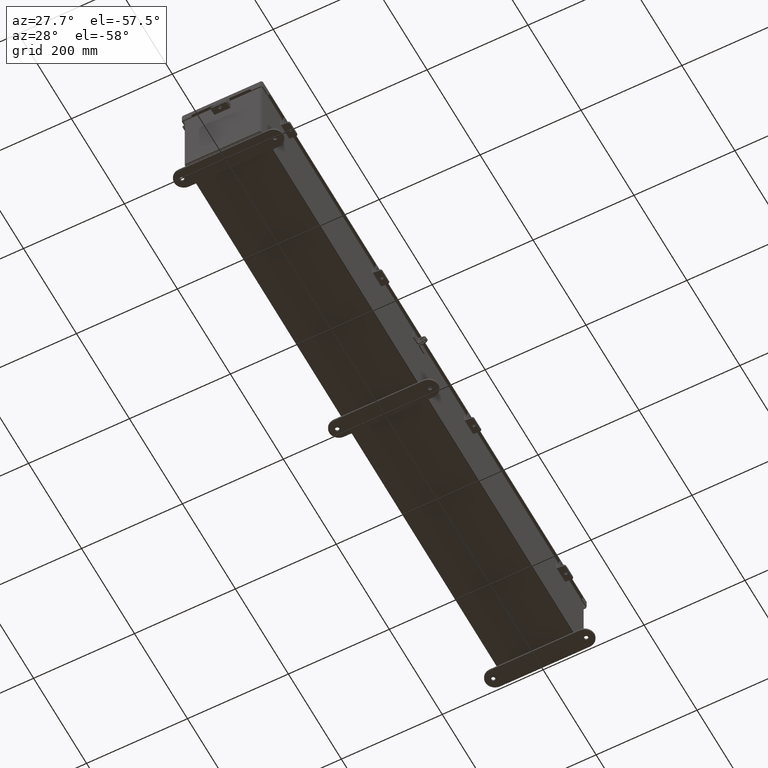
[diagram: clean part render]
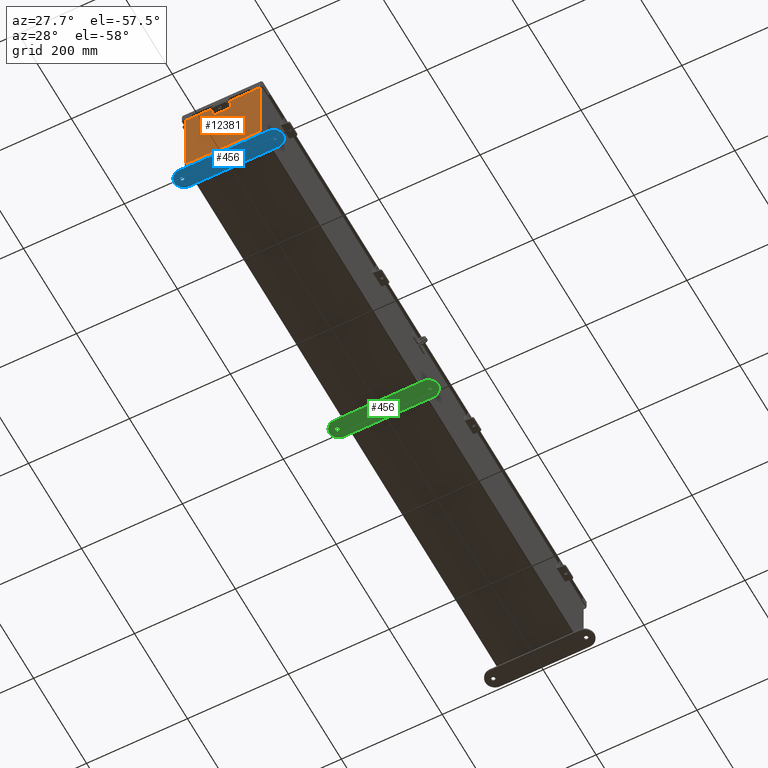
[diagram: same view with three faces highlighted in distinct colors, each labeled with its STEP entity id]
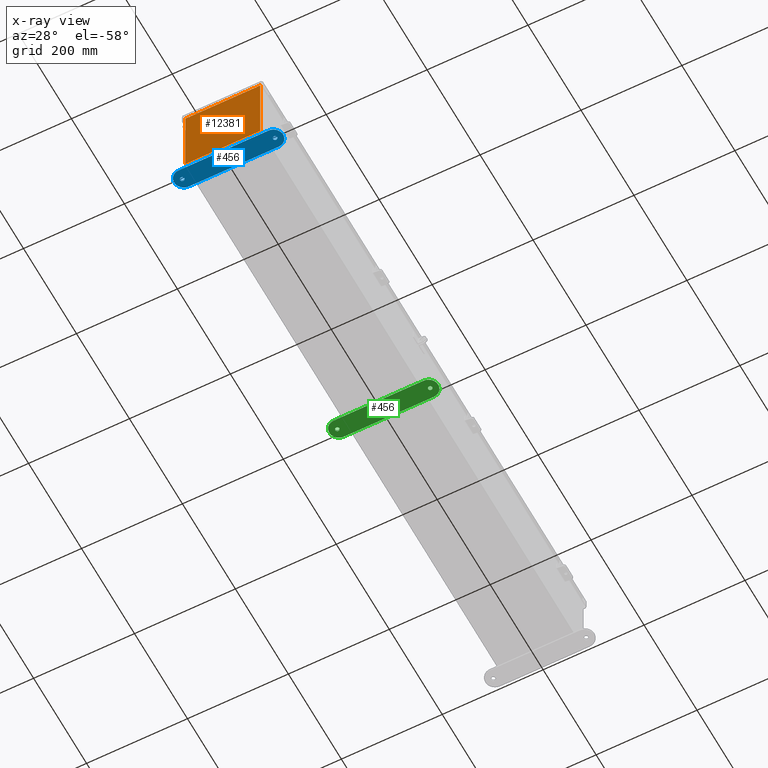
[diagram: x-ray of the same camera — body ghosted, the three highlighted faces saturated]
A machine part, auxiliary view with three faces highlighted in distinct colors.
The next image is the same camera in x-ray (body ghosted, the three faces saturated) — at least one of them is partly hidden behind the body in this view.
Their STEP definitions:

[orange] entity #12381 — the highlighted planar face has unit normal (-0, 1, -0).
#27 = LINE ( 'NONE', #12949, #13317 ) ;
#654 = VECTOR ( 'NONE', #19058, 39.37007874015748100 ) ;
#688 = CARTESIAN_POINT ( 'NONE',  ( -2.619649999999992500, 0.0000000000000000000, -1.092739197465705300E-014 ) ) ;
#832 = ORIENTED_EDGE ( 'NONE', *, *, #4064, .T. ) ;
#1425 = EDGE_LOOP ( 'NONE', ( #23794, #20501, #20190, #5834, #30243, #29289, #5566, #11015, #832, #7238, #14365, #12461 ) ) ;
#1518 = CARTESIAN_POINT ( 'NONE',  ( 0.0000000000000000000, 0.0000000000000000000, 0.0000000000000000000 ) ) ;
#2005 = VERTEX_POINT ( 'NONE', #12037 ) ;
#2037 = CARTESIAN_POINT ( 'NONE',  ( -2.925300000000003600, 0.0000000000000000000, -2.925300000000000500 ) ) ;
#3151 = CARTESIAN_POINT ( 'NONE',  ( -2.582299999999992500, 8.741913579725642300E-014, 2.912299999999998800 ) ) ;
#3189 = CARTESIAN_POINT ( 'NONE',  ( -2.619649999999992500, 8.741913579725642300E-014, 2.925299999999999100 ) ) ;
#3815 = CIRCLE ( 'NONE', #29779, 0.01867500000000003900 ) ;
#4064 = EDGE_CURVE ( 'NONE', #17382, #26729, #28432, .T. ) ;
#4407 = DIRECTION ( 'NONE',  ( 0.0000000000000000000, 0.0000000000000000000, -1.000000000000000000 ) ) ;
#4761 = DIRECTION ( 'NONE',  ( 0.0000000000000000000, 0.0000000000000000000, 1.000000000000000000 ) ) ;
#5513 = DIRECTION ( 'NONE',  ( 1.230560758958866800E-030, 1.000000000000000000, -0.0000000000000000000 ) ) ;
#5566 = ORIENTED_EDGE ( 'NONE', *, *, #7775, .F. ) ;
#5652 = EDGE_CURVE ( 'NONE', #29678, #17382, #30539, .T. ) ;
#5834 = ORIENTED_EDGE ( 'NONE', *, *, #32478, .T. ) ;
#6917 = CARTESIAN_POINT ( 'NONE',  ( -2.582299999999992500, 8.741913579725642300E-014, 2.874949999999999700 ) ) ;
#7238 = ORIENTED_EDGE ( 'NONE', *, *, #36311, .T. ) ;
#7775 = EDGE_CURVE ( 'NONE', #29678, #2005, #10544, .T. ) ;
#7954 = VERTEX_POINT ( 'NONE', #35002 ) ;
#8194 = LINE ( 'NONE', #2037, #654 ) ;
#9648 = EDGE_CURVE ( 'NONE', #2005, #36846, #3815, .T. ) ;
#9680 = CARTESIAN_POINT ( 'NONE',  ( -2.925300000000003600, 0.0000000000000000000, -2.925300000000000500 ) ) ;
#9924 = LINE ( 'NONE', #688, #16603 ) ;
#10181 = CARTESIAN_POINT ( 'NONE',  ( -2.582299999999992500, 0.0000000000000000000, 0.0000000000000000000 ) ) ;
#10544 = LINE ( 'NONE', #34250, #33299 ) ;
#10705 = DIRECTION ( 'NONE',  ( 1.230560758958866800E-030, 1.000000000000000000, -0.0000000000000000000 ) ) ;
#11015 = ORIENTED_EDGE ( 'NONE', *, *, #5652, .T. ) ;
#12037 = CARTESIAN_POINT ( 'NONE',  ( 2.619650000000007600, 8.741913579725642300E-014, 2.874949999999998800 ) ) ;
#12286 = CARTESIAN_POINT ( 'NONE',  ( -2.619649999999992500, 8.741913579725642300E-014, 2.874949999999998800 ) ) ;
#12381 = ADVANCED_FACE ( 'NONE', ( #12499 ), #32752, .F. ) ;
#12461 = ORIENTED_EDGE ( 'NONE', *, *, #26537, .T. ) ;
#12499 = FACE_OUTER_BOUND ( 'NONE', #1425, .T. ) ;
#12949 = CARTESIAN_POINT ( 'NONE',  ( 2.582300000000007600, 0.0000000000000000000, 0.0000000000000000000 ) ) ;
#13023 = DIRECTION ( 'NONE',  ( 0.0000000000000000000, 0.0000000000000000000, -1.000000000000000000 ) ) ;
#13317 = VECTOR ( 'NONE', #32898, 39.37007874015748100 ) ;
#14365 = ORIENTED_EDGE ( 'NONE', *, *, #34434, .T. ) ;
#14533 = DIRECTION ( 'NONE',  ( 1.000000000000000000, 1.230560758958866800E-030, -0.0000000000000000000 ) ) ;
#14832 = DIRECTION ( 'NONE',  ( 0.0000000000000000000, 0.0000000000000000000, 1.000000000000000000 ) ) ;
#15379 = VECTOR ( 'NONE', #4761, 39.37007874015748100 ) ;
#15383 = VECTOR ( 'NONE', #27498, 39.37007874015748100 ) ;
#15760 = CARTESIAN_POINT ( 'NONE',  ( 2.582300000000007600, 8.741913579725642300E-014, 2.874949999999998800 ) ) ;
#16155 = CARTESIAN_POINT ( 'NONE',  ( -2.925299999999992500, 0.0000000000000000000, 2.925300000000000000 ) ) ;
#16249 = AXIS2_PLACEMENT_3D ( 'NONE', #1518, #21414, #4407 ) ;
#16603 = VECTOR ( 'NONE', #14832, 39.37007874015748100 ) ;
#17025 = CARTESIAN_POINT ( 'NONE',  ( -2.582299999999992500, 8.741913579725642300E-014, 2.912299999999998800 ) ) ;
#17176 = DIRECTION ( 'NONE',  ( -1.085143195099989400E-014, 0.0000000000000000000, -1.000000000000000000 ) ) ;
#17382 = VERTEX_POINT ( 'NONE', #20640 ) ;
#17593 = LINE ( 'NONE', #3151, #24266 ) ;
#18108 = LINE ( 'NONE', #10181, #32346 ) ;
#18914 = CARTESIAN_POINT ( 'NONE',  ( -2.925299999999992500, 0.0000000000000000000, 2.925300000000000000 ) ) ;
#19058 = DIRECTION ( 'NONE',  ( -1.000000000000000000, -1.230560758958866800E-030, 0.0000000000000000000 ) ) ;
#20190 = ORIENTED_EDGE ( 'NONE', *, *, #34373, .F. ) ;
#20501 = ORIENTED_EDGE ( 'NONE', *, *, #35715, .F. ) ;
#20640 = CARTESIAN_POINT ( 'NONE',  ( 2.925300000000007600, 8.741913579725642300E-014, 2.925299999999999100 ) ) ;
#20875 = VECTOR ( 'NONE', #13023, 39.37007874015748100 ) ;
#20886 = CARTESIAN_POINT ( 'NONE',  ( 2.582300000000007600, 8.741913579725642300E-014, 2.912299999999997900 ) ) ;
#21414 = DIRECTION ( 'NONE',  ( -1.230560758958866800E-030, -1.000000000000000000, -0.0000000000000000000 ) ) ;
#21607 = CARTESIAN_POINT ( 'NONE',  ( -2.925299999999992500, 0.0000000000000000000, 2.925300000000000000 ) ) ;
#22537 = CARTESIAN_POINT ( 'NONE',  ( 2.600975000000007600, 8.741913579725642300E-014, 2.874949999999998800 ) ) ;
#23099 = CARTESIAN_POINT ( 'NONE',  ( 2.925299999999996900, 8.741913579725642300E-014, -2.925300000000000500 ) ) ;
#23794 = ORIENTED_EDGE ( 'NONE', *, *, #35991, .F. ) ;
#24252 = VERTEX_POINT ( 'NONE', #6917 ) ;
#24266 = VECTOR ( 'NONE', #14533, 39.37007874015748100 ) ;
#24445 = DIRECTION ( 'NONE',  ( 1.000000000000000000, 1.230560758958866800E-030, 0.0000000000000000000 ) ) ;
#25383 = DIRECTION ( 'NONE',  ( 0.0000000000000000000, 0.0000000000000000000, -1.000000000000000000 ) ) ;
#25548 = CIRCLE ( 'NONE', #32407, 0.01867500000000003900 ) ;
#26009 = LINE ( 'NONE', #21607, #33593 ) ;
#26170 = VERTEX_POINT ( 'NONE', #17025 ) ;
#26354 = VERTEX_POINT ( 'NONE', #12286 ) ;
#26537 = EDGE_CURVE ( 'NONE', #7954, #27271, #26009, .T. ) ;
#26729 = VERTEX_POINT ( 'NONE', #23099 ) ;
#27238 = DIRECTION ( 'NONE',  ( 0.0000000000000000000, 0.0000000000000000000, -1.000000000000000000 ) ) ;
#27271 = VERTEX_POINT ( 'NONE', #3189 ) ;
#27498 = DIRECTION ( 'NONE',  ( 1.000000000000000000, 1.230560758958866800E-030, 0.0000000000000000000 ) ) ;
#27770 = CARTESIAN_POINT ( 'NONE',  ( -2.600974999999992500, 8.741913579725642300E-014, 2.874949999999999700 ) ) ;
#28432 = LINE ( 'NONE', #30113, #20875 ) ;
#28708 = EDGE_CURVE ( 'NONE', #36846, #34858, #27, .T. ) ;
#29289 = ORIENTED_EDGE ( 'NONE', *, *, #9648, .F. ) ;
#29678 = VERTEX_POINT ( 'NONE', #34985 ) ;
#29731 = VERTEX_POINT ( 'NONE', #9680 ) ;
#29779 = AXIS2_PLACEMENT_3D ( 'NONE', #22537, #5513, #25383 ) ;
#30113 = CARTESIAN_POINT ( 'NONE',  ( 2.925300000000007600, 8.741913579725642300E-014, 2.925299999999999100 ) ) ;
#30243 = ORIENTED_EDGE ( 'NONE', *, *, #28708, .F. ) ;
#30537 = LINE ( 'NONE', #18914, #15379 ) ;
#30539 = LINE ( 'NONE', #16155, #15383 ) ;
#30635 = DIRECTION ( 'NONE',  ( 0.0000000000000000000, 0.0000000000000000000, -1.000000000000000000 ) ) ;
#32346 = VECTOR ( 'NONE', #27238, 39.37007874015748100 ) ;
#32407 = AXIS2_PLACEMENT_3D ( 'NONE', #27770, #10705, #30635 ) ;
#32478 = EDGE_CURVE ( 'NONE', #26170, #34858, #17593, .T. ) ;
#32752 = PLANE ( 'NONE',  #16249 ) ;
#32898 = DIRECTION ( 'NONE',  ( 0.0000000000000000000, 0.0000000000000000000, 1.000000000000000000 ) ) ;
#33299 = VECTOR ( 'NONE', #17176, 39.37007874015748100 ) ;
#33593 = VECTOR ( 'NONE', #24445, 39.37007874015748100 ) ;
#34250 = CARTESIAN_POINT ( 'NONE',  ( 2.619649999999976500, 0.0000000000000000000, -2.895758873284118700E-014 ) ) ;
#34373 = EDGE_CURVE ( 'NONE', #26170, #24252, #18108, .T. ) ;
#34434 = EDGE_CURVE ( 'NONE', #29731, #7954, #30537, .T. ) ;
#34858 = VERTEX_POINT ( 'NONE', #20886 ) ;
#34985 = CARTESIAN_POINT ( 'NONE',  ( 2.619650000000007600, 8.741913579725642300E-014, 2.925300000000000000 ) ) ;
#35002 = CARTESIAN_POINT ( 'NONE',  ( -2.925299999999992500, 0.0000000000000000000, 2.925300000000000000 ) ) ;
#35715 = EDGE_CURVE ( 'NONE', #24252, #26354, #25548, .T. ) ;
#35991 = EDGE_CURVE ( 'NONE', #26354, #27271, #9924, .T. ) ;
#36311 = EDGE_CURVE ( 'NONE', #26729, #29731, #8194, .T. ) ;
#36846 = VERTEX_POINT ( 'NONE', #15760 ) ;

[blue] entity #456 — the highlighted planar face has unit normal (0, 0, -1).
#29 = EDGE_CURVE ( 'NONE', #33764, #34724, #23783, .T. ) ;
#68 = CARTESIAN_POINT ( 'NONE',  ( -3.499999999999998700, -0.3379059350503894100, -0.1345000000000000100 ) ) ;
#264 = EDGE_LOOP ( 'NONE', ( #23900, #5285, #1655, #6222, #2686 ) ) ;
#456 = ADVANCED_FACE ( 'NONE', ( #26412, #2876, #25140 ), #35951, .T. ) ;
#1026 = DIRECTION ( 'NONE',  ( 0.0000000000000000000, 0.0000000000000000000, 1.000000000000000000 ) ) ;
#1655 = ORIENTED_EDGE ( 'NONE', *, *, #16808, .F. ) ;
#1827 = DIRECTION ( 'NONE',  ( -1.000000000000000000, 0.0000000000000000000, 0.0000000000000000000 ) ) ;
#1943 = CARTESIAN_POINT ( 'NONE',  ( -3.625000000000000400, 0.4120940649496067100, -0.1345000000000000100 ) ) ;
#2686 = ORIENTED_EDGE ( 'NONE', *, *, #20685, .F. ) ;
#2876 = FACE_BOUND ( 'NONE', #10411, .T. ) ;
#4814 = DIRECTION ( 'NONE',  ( -1.000000000000000000, 0.0000000000000000000, 0.0000000000000000000 ) ) ;
#5285 = ORIENTED_EDGE ( 'NONE', *, *, #24381, .F. ) ;
#5666 = CIRCLE ( 'NONE', #26856, 0.1564999999999992800 ) ;
#6098 = CARTESIAN_POINT ( 'NONE',  ( 4.250000000000000900, 0.4120940649496110900, -0.1345000000000000100 ) ) ;
#6222 = ORIENTED_EDGE ( 'NONE', *, *, #16857, .F. ) ;
#6479 = CIRCLE ( 'NONE', #20635, 0.1564999999999992800 ) ;
#7169 = VERTEX_POINT ( 'NONE', #16709 ) ;
#7198 = CIRCLE ( 'NONE', #16355, 0.7499999999999998900 ) ;
#8692 = CARTESIAN_POINT ( 'NONE',  ( 3.468500000000001000, 0.4120940649496067100, -0.1345000000000000100 ) ) ;
#9748 = VERTEX_POINT ( 'NONE', #8692 ) ;
#9855 = CARTESIAN_POINT ( 'NONE',  ( 3.499999999999998700, -0.3379059350503894100, -0.1345000000000000100 ) ) ;
#10411 = EDGE_LOOP ( 'NONE', ( #35938, #18778 ) ) ;
#12864 = CARTESIAN_POINT ( 'NONE',  ( 3.625000000000000400, 0.4120940649496067100, -0.1345000000000000100 ) ) ;
#12954 = VECTOR ( 'NONE', #35266, 39.37007874015748100 ) ;
#13640 = VERTEX_POINT ( 'NONE', #31101 ) ;
#14543 = CARTESIAN_POINT ( 'NONE',  ( 3.625000000000000400, 0.4120940649496067100, -0.1345000000000000100 ) ) ;
#15038 = EDGE_CURVE ( 'NONE', #9748, #28204, #6479, .T. ) ;
#15731 = DIRECTION ( 'NONE',  ( -1.000000000000000000, 0.0000000000000000000, 0.0000000000000000000 ) ) ;
#15768 = CARTESIAN_POINT ( 'NONE',  ( -3.625000000000000400, 0.4120940649496067100, -0.1345000000000000100 ) ) ;
#15779 = CARTESIAN_POINT ( 'NONE',  ( 3.500000000000000000, 0.4120940649496110900, -0.1345000000000000100 ) ) ;
#16181 = AXIS2_PLACEMENT_3D ( 'NONE', #16505, #36479, #19371 ) ;
#16355 = AXIS2_PLACEMENT_3D ( 'NONE', #18087, #1026, #20930 ) ;
#16505 = CARTESIAN_POINT ( 'NONE',  ( 3.500000000000000000, 0.4120940649496110900, -0.1345000000000000100 ) ) ;
#16552 = VERTEX_POINT ( 'NONE', #34173 ) ;
#16709 = CARTESIAN_POINT ( 'NONE',  ( -3.499999999999998700, 1.162094064949611600, -0.1345000000000000100 ) ) ;
#16808 = EDGE_CURVE ( 'NONE', #7169, #28468, #7198, .T. ) ;
#16857 = EDGE_CURVE ( 'NONE', #13640, #7169, #22350, .T. ) ;
#17428 = DIRECTION ( 'NONE',  ( -1.000000000000000000, 0.0000000000000000000, 0.0000000000000000000 ) ) ;
#17473 = CIRCLE ( 'NONE', #23939, 0.1564999999999992800 ) ;
#18087 = CARTESIAN_POINT ( 'NONE',  ( -3.499999999999998700, 0.4120940649496110900, -0.1345000000000000100 ) ) ;
#18655 = DIRECTION ( 'NONE',  ( -1.000000000000000000, 0.0000000000000000000, 0.0000000000000000000 ) ) ;
#18662 = DIRECTION ( 'NONE',  ( -1.000000000000000000, 0.0000000000000000000, 0.0000000000000000000 ) ) ;
#18778 = ORIENTED_EDGE ( 'NONE', *, *, #27501, .T. ) ;
#18857 = DIRECTION ( 'NONE',  ( 0.0000000000000000000, 0.0000000000000000000, -1.000000000000000000 ) ) ;
#19371 = DIRECTION ( 'NONE',  ( -1.000000000000000000, 0.0000000000000000000, 0.0000000000000000000 ) ) ;
#20635 = AXIS2_PLACEMENT_3D ( 'NONE', #14543, #34510, #17428 ) ;
#20685 = EDGE_CURVE ( 'NONE', #34724, #13640, #33046, .T. ) ;
#20930 = DIRECTION ( 'NONE',  ( 1.000000000000000000, 0.0000000000000000000, 0.0000000000000000000 ) ) ;
#21548 = ORIENTED_EDGE ( 'NONE', *, *, #15038, .F. ) ;
#21833 = DIRECTION ( 'NONE',  ( -0.0000000000000000000, -0.0000000000000000000, 1.000000000000000000 ) ) ;
#22350 = LINE ( 'NONE', #29382, #12954 ) ;
#22639 = EDGE_CURVE ( 'NONE', #16552, #34177, #23165, .T. ) ;
#22845 = AXIS2_PLACEMENT_3D ( 'NONE', #1943, #21833, #4814 ) ;
#23165 = CIRCLE ( 'NONE', #22845, 0.1564999999999992800 ) ;
#23783 = CIRCLE ( 'NONE', #16181, 0.7500000000000010000 ) ;
#23900 = ORIENTED_EDGE ( 'NONE', *, *, #29, .F. ) ;
#23939 = AXIS2_PLACEMENT_3D ( 'NONE', #15768, #35741, #18655 ) ;
#24381 = EDGE_CURVE ( 'NONE', #28468, #33764, #32392, .T. ) ;
#24447 = CARTESIAN_POINT ( 'NONE',  ( 3.781499999999999400, 0.4120940649496067100, -0.1345000000000000100 ) ) ;
#24794 = VECTOR ( 'NONE', #30283, 39.37007874015748100 ) ;
#25140 = FACE_BOUND ( 'NONE', #25849, .T. ) ;
#25171 = ORIENTED_EDGE ( 'NONE', *, *, #31002, .F. ) ;
#25768 = CARTESIAN_POINT ( 'NONE',  ( -3.781499999999999400, 0.4120940649496067100, -0.1345000000000000100 ) ) ;
#25849 = EDGE_LOOP ( 'NONE', ( #25171, #21548 ) ) ;
#26412 = FACE_OUTER_BOUND ( 'NONE', #264, .T. ) ;
#26856 = AXIS2_PLACEMENT_3D ( 'NONE', #12864, #32817, #15731 ) ;
#27441 = CARTESIAN_POINT ( 'NONE',  ( -3.499999999999998700, -0.3379059350503894100, -0.1345000000000000100 ) ) ;
#27501 = EDGE_CURVE ( 'NONE', #34177, #16552, #17473, .T. ) ;
#28204 = VERTEX_POINT ( 'NONE', #24447 ) ;
#28468 = VERTEX_POINT ( 'NONE', #68 ) ;
#29382 = CARTESIAN_POINT ( 'NONE',  ( -3.499999999999998700, 1.162094064949611600, -0.1345000000000000100 ) ) ;
#30172 = CARTESIAN_POINT ( 'NONE',  ( 3.500000000000000000, 0.4120940649496110900, -0.1345000000000000100 ) ) ;
#30283 = DIRECTION ( 'NONE',  ( 1.000000000000000000, -1.170791997284684700E-016, 0.0000000000000000000 ) ) ;
#31002 = EDGE_CURVE ( 'NONE', #28204, #9748, #5666, .T. ) ;
#31101 = CARTESIAN_POINT ( 'NONE',  ( 3.499999999999998700, 1.162094064949611600, -0.1345000000000000100 ) ) ;
#32392 = LINE ( 'NONE', #27441, #24794 ) ;
#32817 = DIRECTION ( 'NONE',  ( 0.0000000000000000000, 0.0000000000000000000, -1.000000000000000000 ) ) ;
#33046 = CIRCLE ( 'NONE', #36179, 0.7500000000000010000 ) ;
#33764 = VERTEX_POINT ( 'NONE', #9855 ) ;
#34173 = CARTESIAN_POINT ( 'NONE',  ( -3.468500000000001000, 0.4120940649496067100, -0.1345000000000000100 ) ) ;
#34177 = VERTEX_POINT ( 'NONE', #25768 ) ;
#34510 = DIRECTION ( 'NONE',  ( 0.0000000000000000000, 0.0000000000000000000, -1.000000000000000000 ) ) ;
#34627 = AXIS2_PLACEMENT_3D ( 'NONE', #30172, #18857, #1827 ) ;
#34724 = VERTEX_POINT ( 'NONE', #6098 ) ;
#35266 = DIRECTION ( 'NONE',  ( -1.000000000000000000, -1.170791997284684700E-016, 0.0000000000000000000 ) ) ;
#35741 = DIRECTION ( 'NONE',  ( -0.0000000000000000000, -0.0000000000000000000, 1.000000000000000000 ) ) ;
#35753 = DIRECTION ( 'NONE',  ( 0.0000000000000000000, 0.0000000000000000000, 1.000000000000000000 ) ) ;
#35938 = ORIENTED_EDGE ( 'NONE', *, *, #22639, .T. ) ;
#35951 = PLANE ( 'NONE',  #34627 ) ;
#36179 = AXIS2_PLACEMENT_3D ( 'NONE', #15779, #35753, #18662 ) ;
#36479 = DIRECTION ( 'NONE',  ( 0.0000000000000000000, 0.0000000000000000000, 1.000000000000000000 ) ) ;

[green] entity #456 — the highlighted planar face has unit normal (0, 0, -1).
#29 = EDGE_CURVE ( 'NONE', #33764, #34724, #23783, .T. ) ;
#68 = CARTESIAN_POINT ( 'NONE',  ( -3.499999999999998700, -0.3379059350503894100, -0.1345000000000000100 ) ) ;
#264 = EDGE_LOOP ( 'NONE', ( #23900, #5285, #1655, #6222, #2686 ) ) ;
#456 = ADVANCED_FACE ( 'NONE', ( #26412, #2876, #25140 ), #35951, .T. ) ;
#1026 = DIRECTION ( 'NONE',  ( 0.0000000000000000000, 0.0000000000000000000, 1.000000000000000000 ) ) ;
#1655 = ORIENTED_EDGE ( 'NONE', *, *, #16808, .F. ) ;
#1827 = DIRECTION ( 'NONE',  ( -1.000000000000000000, 0.0000000000000000000, 0.0000000000000000000 ) ) ;
#1943 = CARTESIAN_POINT ( 'NONE',  ( -3.625000000000000400, 0.4120940649496067100, -0.1345000000000000100 ) ) ;
#2686 = ORIENTED_EDGE ( 'NONE', *, *, #20685, .F. ) ;
#2876 = FACE_BOUND ( 'NONE', #10411, .T. ) ;
#4814 = DIRECTION ( 'NONE',  ( -1.000000000000000000, 0.0000000000000000000, 0.0000000000000000000 ) ) ;
#5285 = ORIENTED_EDGE ( 'NONE', *, *, #24381, .F. ) ;
#5666 = CIRCLE ( 'NONE', #26856, 0.1564999999999992800 ) ;
#6098 = CARTESIAN_POINT ( 'NONE',  ( 4.250000000000000900, 0.4120940649496110900, -0.1345000000000000100 ) ) ;
#6222 = ORIENTED_EDGE ( 'NONE', *, *, #16857, .F. ) ;
#6479 = CIRCLE ( 'NONE', #20635, 0.1564999999999992800 ) ;
#7169 = VERTEX_POINT ( 'NONE', #16709 ) ;
#7198 = CIRCLE ( 'NONE', #16355, 0.7499999999999998900 ) ;
#8692 = CARTESIAN_POINT ( 'NONE',  ( 3.468500000000001000, 0.4120940649496067100, -0.1345000000000000100 ) ) ;
#9748 = VERTEX_POINT ( 'NONE', #8692 ) ;
#9855 = CARTESIAN_POINT ( 'NONE',  ( 3.499999999999998700, -0.3379059350503894100, -0.1345000000000000100 ) ) ;
#10411 = EDGE_LOOP ( 'NONE', ( #35938, #18778 ) ) ;
#12864 = CARTESIAN_POINT ( 'NONE',  ( 3.625000000000000400, 0.4120940649496067100, -0.1345000000000000100 ) ) ;
#12954 = VECTOR ( 'NONE', #35266, 39.37007874015748100 ) ;
#13640 = VERTEX_POINT ( 'NONE', #31101 ) ;
#14543 = CARTESIAN_POINT ( 'NONE',  ( 3.625000000000000400, 0.4120940649496067100, -0.1345000000000000100 ) ) ;
#15038 = EDGE_CURVE ( 'NONE', #9748, #28204, #6479, .T. ) ;
#15731 = DIRECTION ( 'NONE',  ( -1.000000000000000000, 0.0000000000000000000, 0.0000000000000000000 ) ) ;
#15768 = CARTESIAN_POINT ( 'NONE',  ( -3.625000000000000400, 0.4120940649496067100, -0.1345000000000000100 ) ) ;
#15779 = CARTESIAN_POINT ( 'NONE',  ( 3.500000000000000000, 0.4120940649496110900, -0.1345000000000000100 ) ) ;
#16181 = AXIS2_PLACEMENT_3D ( 'NONE', #16505, #36479, #19371 ) ;
#16355 = AXIS2_PLACEMENT_3D ( 'NONE', #18087, #1026, #20930 ) ;
#16505 = CARTESIAN_POINT ( 'NONE',  ( 3.500000000000000000, 0.4120940649496110900, -0.1345000000000000100 ) ) ;
#16552 = VERTEX_POINT ( 'NONE', #34173 ) ;
#16709 = CARTESIAN_POINT ( 'NONE',  ( -3.499999999999998700, 1.162094064949611600, -0.1345000000000000100 ) ) ;
#16808 = EDGE_CURVE ( 'NONE', #7169, #28468, #7198, .T. ) ;
#16857 = EDGE_CURVE ( 'NONE', #13640, #7169, #22350, .T. ) ;
#17428 = DIRECTION ( 'NONE',  ( -1.000000000000000000, 0.0000000000000000000, 0.0000000000000000000 ) ) ;
#17473 = CIRCLE ( 'NONE', #23939, 0.1564999999999992800 ) ;
#18087 = CARTESIAN_POINT ( 'NONE',  ( -3.499999999999998700, 0.4120940649496110900, -0.1345000000000000100 ) ) ;
#18655 = DIRECTION ( 'NONE',  ( -1.000000000000000000, 0.0000000000000000000, 0.0000000000000000000 ) ) ;
#18662 = DIRECTION ( 'NONE',  ( -1.000000000000000000, 0.0000000000000000000, 0.0000000000000000000 ) ) ;
#18778 = ORIENTED_EDGE ( 'NONE', *, *, #27501, .T. ) ;
#18857 = DIRECTION ( 'NONE',  ( 0.0000000000000000000, 0.0000000000000000000, -1.000000000000000000 ) ) ;
#19371 = DIRECTION ( 'NONE',  ( -1.000000000000000000, 0.0000000000000000000, 0.0000000000000000000 ) ) ;
#20635 = AXIS2_PLACEMENT_3D ( 'NONE', #14543, #34510, #17428 ) ;
#20685 = EDGE_CURVE ( 'NONE', #34724, #13640, #33046, .T. ) ;
#20930 = DIRECTION ( 'NONE',  ( 1.000000000000000000, 0.0000000000000000000, 0.0000000000000000000 ) ) ;
#21548 = ORIENTED_EDGE ( 'NONE', *, *, #15038, .F. ) ;
#21833 = DIRECTION ( 'NONE',  ( -0.0000000000000000000, -0.0000000000000000000, 1.000000000000000000 ) ) ;
#22350 = LINE ( 'NONE', #29382, #12954 ) ;
#22639 = EDGE_CURVE ( 'NONE', #16552, #34177, #23165, .T. ) ;
#22845 = AXIS2_PLACEMENT_3D ( 'NONE', #1943, #21833, #4814 ) ;
#23165 = CIRCLE ( 'NONE', #22845, 0.1564999999999992800 ) ;
#23783 = CIRCLE ( 'NONE', #16181, 0.7500000000000010000 ) ;
#23900 = ORIENTED_EDGE ( 'NONE', *, *, #29, .F. ) ;
#23939 = AXIS2_PLACEMENT_3D ( 'NONE', #15768, #35741, #18655 ) ;
#24381 = EDGE_CURVE ( 'NONE', #28468, #33764, #32392, .T. ) ;
#24447 = CARTESIAN_POINT ( 'NONE',  ( 3.781499999999999400, 0.4120940649496067100, -0.1345000000000000100 ) ) ;
#24794 = VECTOR ( 'NONE', #30283, 39.37007874015748100 ) ;
#25140 = FACE_BOUND ( 'NONE', #25849, .T. ) ;
#25171 = ORIENTED_EDGE ( 'NONE', *, *, #31002, .F. ) ;
#25768 = CARTESIAN_POINT ( 'NONE',  ( -3.781499999999999400, 0.4120940649496067100, -0.1345000000000000100 ) ) ;
#25849 = EDGE_LOOP ( 'NONE', ( #25171, #21548 ) ) ;
#26412 = FACE_OUTER_BOUND ( 'NONE', #264, .T. ) ;
#26856 = AXIS2_PLACEMENT_3D ( 'NONE', #12864, #32817, #15731 ) ;
#27441 = CARTESIAN_POINT ( 'NONE',  ( -3.499999999999998700, -0.3379059350503894100, -0.1345000000000000100 ) ) ;
#27501 = EDGE_CURVE ( 'NONE', #34177, #16552, #17473, .T. ) ;
#28204 = VERTEX_POINT ( 'NONE', #24447 ) ;
#28468 = VERTEX_POINT ( 'NONE', #68 ) ;
#29382 = CARTESIAN_POINT ( 'NONE',  ( -3.499999999999998700, 1.162094064949611600, -0.1345000000000000100 ) ) ;
#30172 = CARTESIAN_POINT ( 'NONE',  ( 3.500000000000000000, 0.4120940649496110900, -0.1345000000000000100 ) ) ;
#30283 = DIRECTION ( 'NONE',  ( 1.000000000000000000, -1.170791997284684700E-016, 0.0000000000000000000 ) ) ;
#31002 = EDGE_CURVE ( 'NONE', #28204, #9748, #5666, .T. ) ;
#31101 = CARTESIAN_POINT ( 'NONE',  ( 3.499999999999998700, 1.162094064949611600, -0.1345000000000000100 ) ) ;
#32392 = LINE ( 'NONE', #27441, #24794 ) ;
#32817 = DIRECTION ( 'NONE',  ( 0.0000000000000000000, 0.0000000000000000000, -1.000000000000000000 ) ) ;
#33046 = CIRCLE ( 'NONE', #36179, 0.7500000000000010000 ) ;
#33764 = VERTEX_POINT ( 'NONE', #9855 ) ;
#34173 = CARTESIAN_POINT ( 'NONE',  ( -3.468500000000001000, 0.4120940649496067100, -0.1345000000000000100 ) ) ;
#34177 = VERTEX_POINT ( 'NONE', #25768 ) ;
#34510 = DIRECTION ( 'NONE',  ( 0.0000000000000000000, 0.0000000000000000000, -1.000000000000000000 ) ) ;
#34627 = AXIS2_PLACEMENT_3D ( 'NONE', #30172, #18857, #1827 ) ;
#34724 = VERTEX_POINT ( 'NONE', #6098 ) ;
#35266 = DIRECTION ( 'NONE',  ( -1.000000000000000000, -1.170791997284684700E-016, 0.0000000000000000000 ) ) ;
#35741 = DIRECTION ( 'NONE',  ( -0.0000000000000000000, -0.0000000000000000000, 1.000000000000000000 ) ) ;
#35753 = DIRECTION ( 'NONE',  ( 0.0000000000000000000, 0.0000000000000000000, 1.000000000000000000 ) ) ;
#35938 = ORIENTED_EDGE ( 'NONE', *, *, #22639, .T. ) ;
#35951 = PLANE ( 'NONE',  #34627 ) ;
#36179 = AXIS2_PLACEMENT_3D ( 'NONE', #15779, #35753, #18662 ) ;
#36479 = DIRECTION ( 'NONE',  ( 0.0000000000000000000, 0.0000000000000000000, 1.000000000000000000 ) ) ;